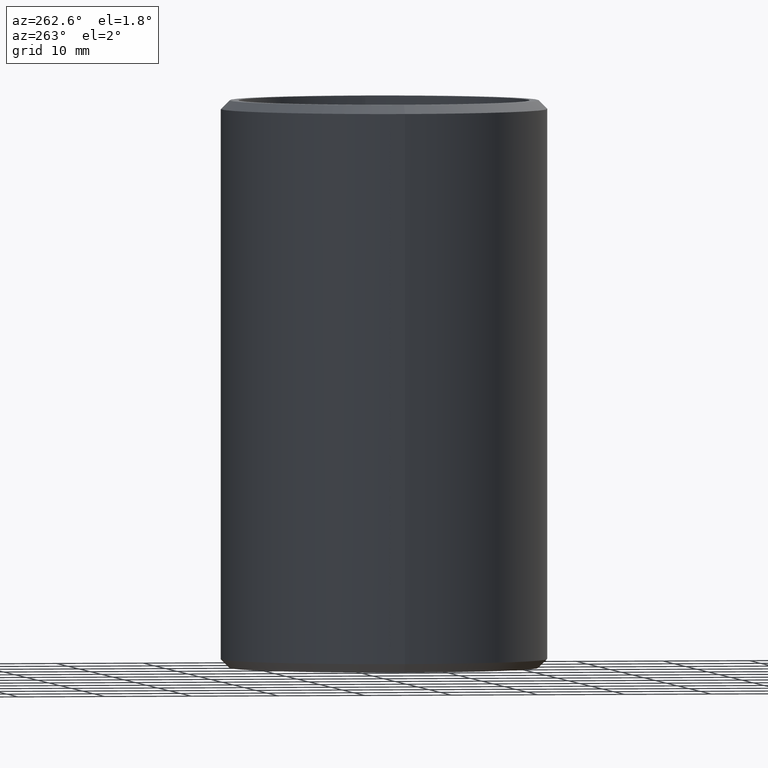
[diagram: clean part render]
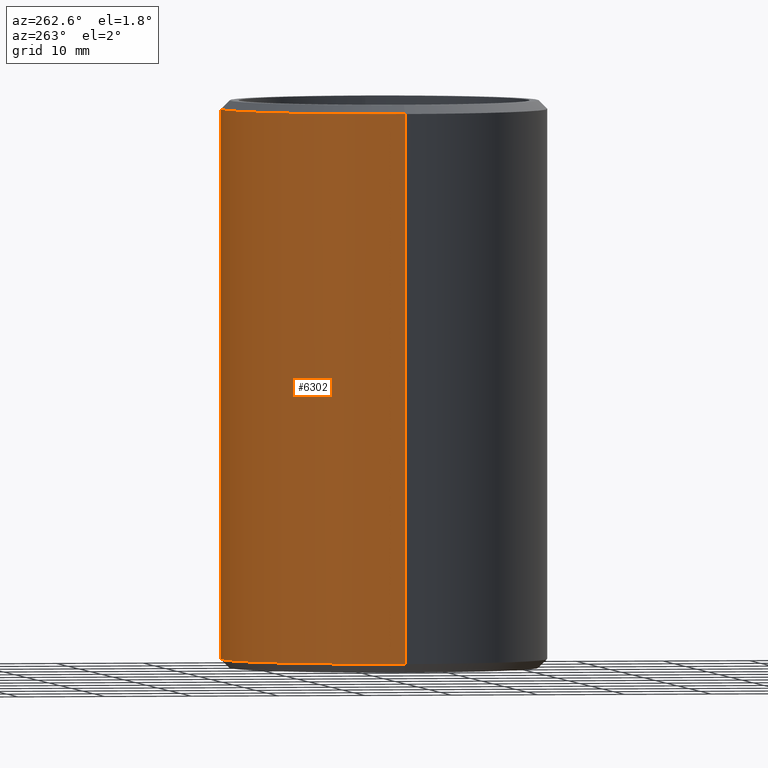
[diagram: same view with one face highlighted and labeled with its STEP entity id]
A machine part, auxiliary view. The second image highlights one B-rep face of the part: STEP entity #6302.
In plain terms, the highlighted cylindrical surface (partial cylindrical patch) has radius 18.7 mm, axis along (-0, -0, -1).
Its self-contained STEP definition (entity closure, byte-faithful):
#18 = VERTEX_POINT ( 'NONE', #12883 ) ;
#416 = AXIS2_PLACEMENT_3D ( 'NONE', #6167, #11253, #7268 ) ;
#1062 = EDGE_LOOP ( 'NONE', ( #10064, #1872, #7051, #9017 ) ) ;
#1118 = AXIS2_PLACEMENT_3D ( 'NONE', #12330, #1144, #11463 ) ;
#1141 = VERTEX_POINT ( 'NONE', #10345 ) ;
#1144 = DIRECTION ( 'NONE',  ( -0.0000000000000000000, -0.0000000000000000000, -1.000000000000000000 ) ) ;
#1516 = CARTESIAN_POINT ( 'NONE',  ( 0.0000000000000000000, 0.0000000000000000000, 31.50000000000000700 ) ) ;
#1872 = ORIENTED_EDGE ( 'NONE', *, *, #9706, .T. ) ;
#2938 = VECTOR ( 'NONE', #5825, 1000.000000000000000 ) ;
#3156 = AXIS2_PLACEMENT_3D ( 'NONE', #1516, #6504, #12624 ) ;
#3451 = VECTOR ( 'NONE', #11188, 1000.000000000000000 ) ;
#5825 = DIRECTION ( 'NONE',  ( -0.0000000000000000000, -0.0000000000000000000, -1.000000000000000000 ) ) ;
#6167 = CARTESIAN_POINT ( 'NONE',  ( 0.0000000000000000000, 0.0000000000000000000, -31.49999999999998600 ) ) ;
#6302 = ADVANCED_FACE ( 'NONE', ( #12491 ), #6559, .T. ) ;
#6359 = LINE ( 'NONE', #8120, #3451 ) ;
#6488 = EDGE_CURVE ( 'NONE', #1141, #12591, #11413, .T. ) ;
#6504 = DIRECTION ( 'NONE',  ( 0.0000000000000000000, 0.0000000000000000000, -1.000000000000000000 ) ) ;
#6559 = CYLINDRICAL_SURFACE ( 'NONE', #1118, 18.69999999999999900 ) ;
#7051 = ORIENTED_EDGE ( 'NONE', *, *, #12551, .T. ) ;
#7093 = CIRCLE ( 'NONE', #416, 18.69999999999999900 ) ;
#7268 = DIRECTION ( 'NONE',  ( 1.000000000000000000, 0.0000000000000000000, 0.0000000000000000000 ) ) ;
#8120 = CARTESIAN_POINT ( 'NONE',  ( 18.69999999999999900, 2.290089514405550500E-015, 32.50000000000000000 ) ) ;
#8992 = LINE ( 'NONE', #12800, #2938 ) ;
#9017 = ORIENTED_EDGE ( 'NONE', *, *, #10774, .F. ) ;
#9706 = EDGE_CURVE ( 'NONE', #12591, #10919, #6359, .T. ) ;
#10064 = ORIENTED_EDGE ( 'NONE', *, *, #6488, .T. ) ;
#10345 = CARTESIAN_POINT ( 'NONE',  ( -18.69999999999999900, 0.0000000000000000000, 31.50000000000000700 ) ) ;
#10372 = CARTESIAN_POINT ( 'NONE',  ( 18.69999999999999900, 2.290089514405550500E-015, -31.49999999999998600 ) ) ;
#10774 = EDGE_CURVE ( 'NONE', #1141, #18, #8992, .T. ) ;
#10919 = VERTEX_POINT ( 'NONE', #10372 ) ;
#11188 = DIRECTION ( 'NONE',  ( -0.0000000000000000000, -0.0000000000000000000, -1.000000000000000000 ) ) ;
#11253 = DIRECTION ( 'NONE',  ( -0.0000000000000000000, -0.0000000000000000000, 1.000000000000000000 ) ) ;
#11413 = CIRCLE ( 'NONE', #3156, 18.69999999999999900 ) ;
#11463 = DIRECTION ( 'NONE',  ( -1.000000000000000000, 0.0000000000000000000, 0.0000000000000000000 ) ) ;
#12210 = CARTESIAN_POINT ( 'NONE',  ( 18.69999999999999900, 2.290089514405550500E-015, 31.50000000000000700 ) ) ;
#12330 = CARTESIAN_POINT ( 'NONE',  ( 0.0000000000000000000, 0.0000000000000000000, 32.50000000000000000 ) ) ;
#12491 = FACE_OUTER_BOUND ( 'NONE', #1062, .T. ) ;
#12551 = EDGE_CURVE ( 'NONE', #10919, #18, #7093, .T. ) ;
#12591 = VERTEX_POINT ( 'NONE', #12210 ) ;
#12624 = DIRECTION ( 'NONE',  ( 1.000000000000000000, 0.0000000000000000000, 0.0000000000000000000 ) ) ;
#12800 = CARTESIAN_POINT ( 'NONE',  ( -18.69999999999999900, 0.0000000000000000000, 32.50000000000000000 ) ) ;
#12883 = CARTESIAN_POINT ( 'NONE',  ( -18.69999999999999900, 0.0000000000000000000, -31.49999999999998600 ) ) ;